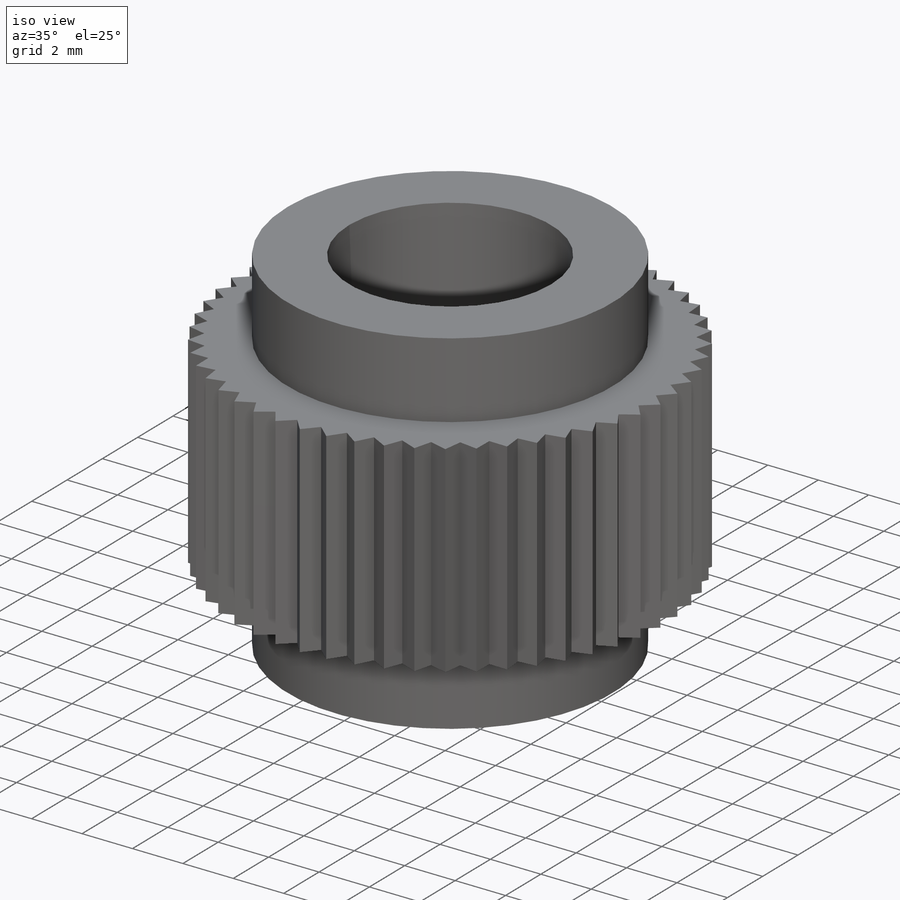
[diagram: iso view]
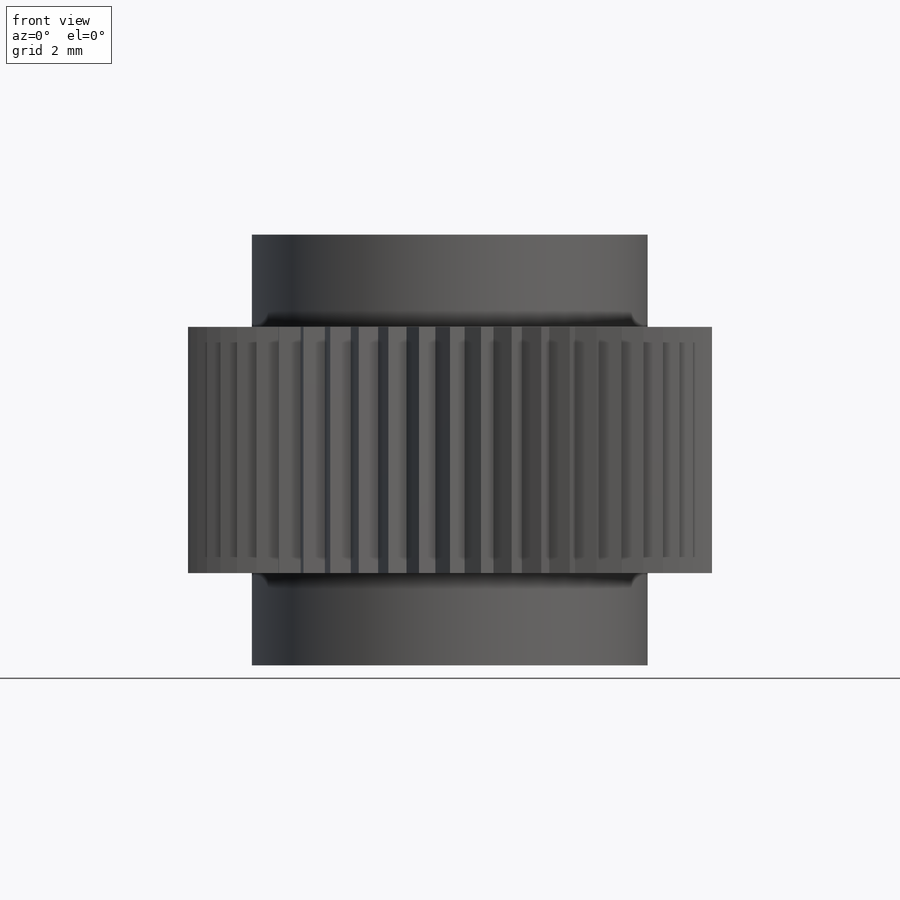
[diagram: front view]
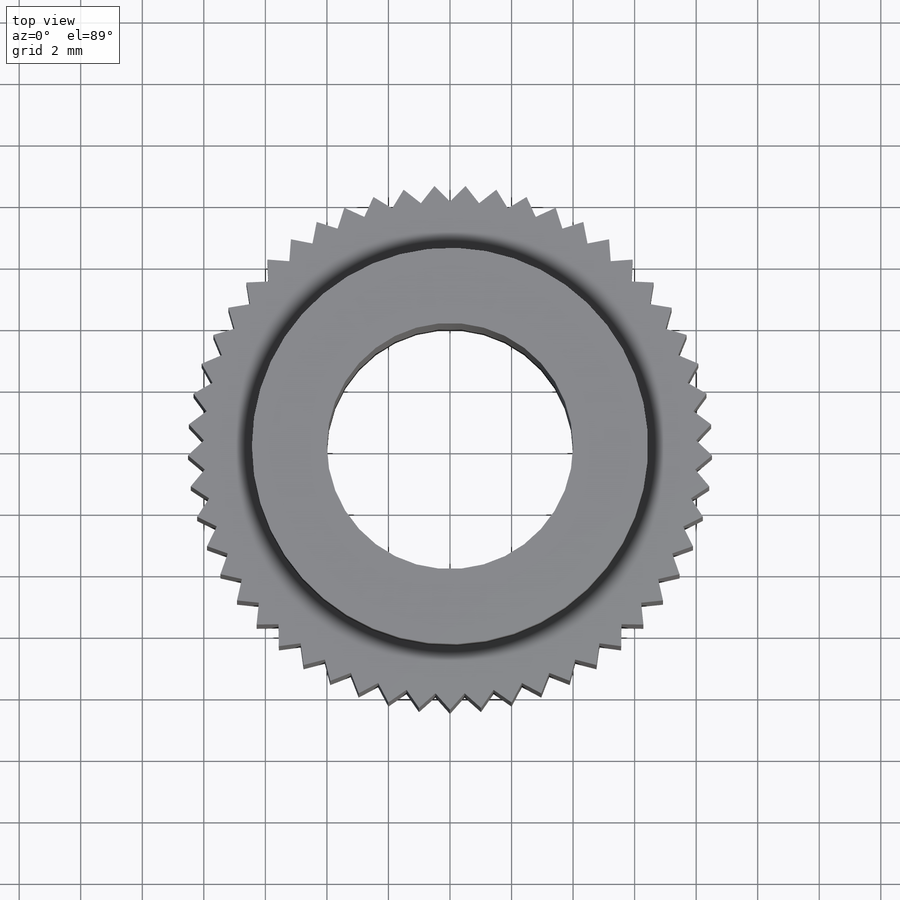
[diagram: top view]
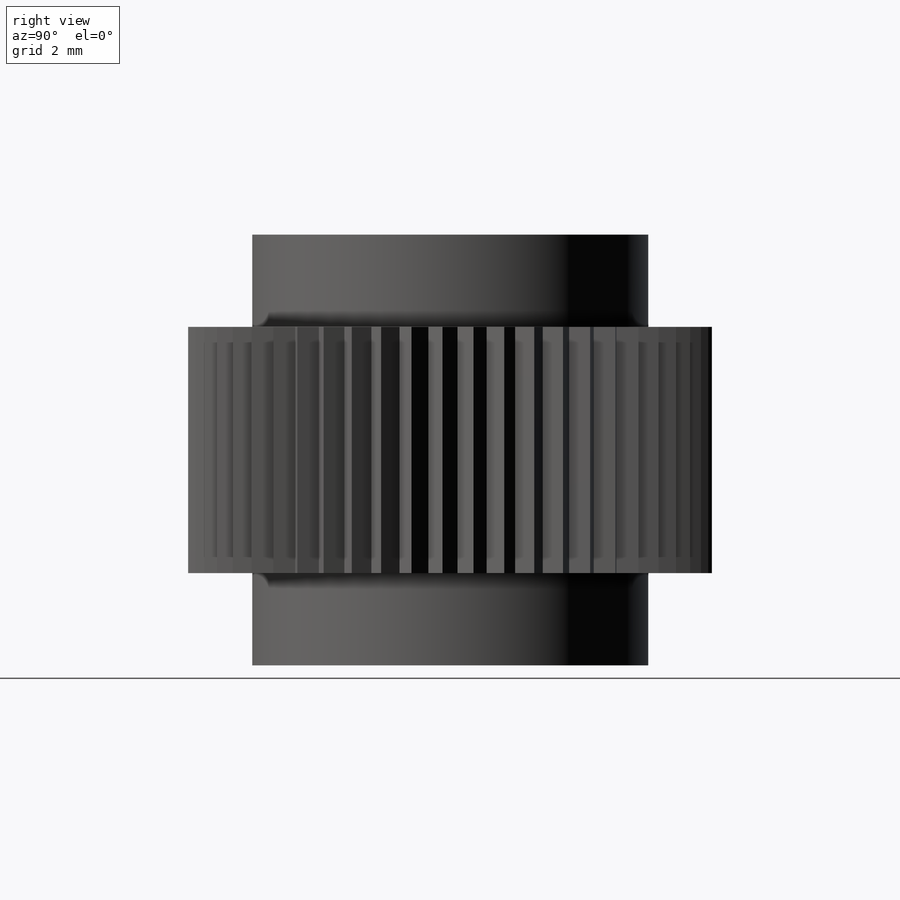
[diagram: right view]
SOLIDWORKS PART (.sldprt)
format: sldprt  version: not decoded by parser v0  size: 937,984 bytes
history: native  units: mm
features: sketch x4, plane x3, cut_extrude x2, material x1, revolve x1, pattern_circular x1 (+10 scaffold rows collapsed)
feature tree (22):
  scaffold x10  (default folders/planes/origin — collapsed)
  material  "材质 <未指定>"
  plane  "前视基准面"
  plane  "上视基准面"
  plane  "右视基准面"
  sketch  "草图1"  dims[c1.D1=25.0mm c1.D2=4.0mm c1.D3=~3.907467mm c2.D2=12.88mm c2.D3=19.0mm c2.D4=12.88mm c2.D5=3.0mm c2.D6=3.0mm c2.D7=3.0mm c2.D8=14.0mm c2.D1=8.0mm c2.D9=~32.411648mm c3.D8=8.0mm]
  revolve  "旋转1"  Angle=360deg
  sketch  "草图2"  dims[D1=17.0mm D2=1.0mm D3=0.6mm]
  cut_extrude  "切除-拉伸2"  [1 undecoded]
  pattern_circular  "阵列(圆周)1"  Count=53 Angle=360deg
  sketch  "草图3"  dims[D1=6.0mm D2=6.0mm]
  sketch  "草图4"
  cut_extrude  "切除-拉伸3"  [1 undecoded]
decode coverage: 5 of 8 modeling features carry decoded parameters
note: ~ marks probable driven/reference dimensions
note: 2 parameter values undecoded
note: suppression state not decoded; provenance and decode notes live in map.json
